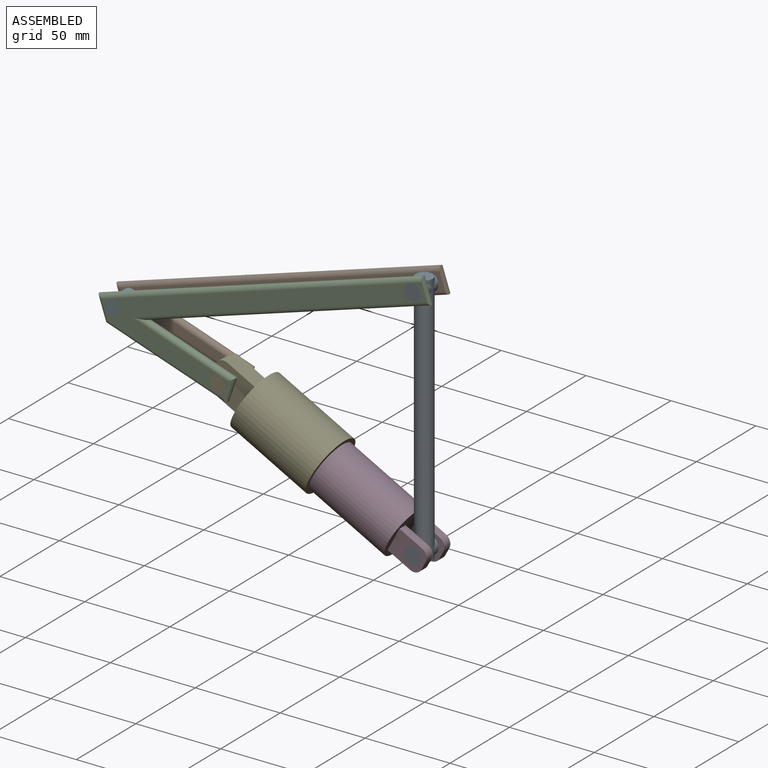
[diagram: assembled view]
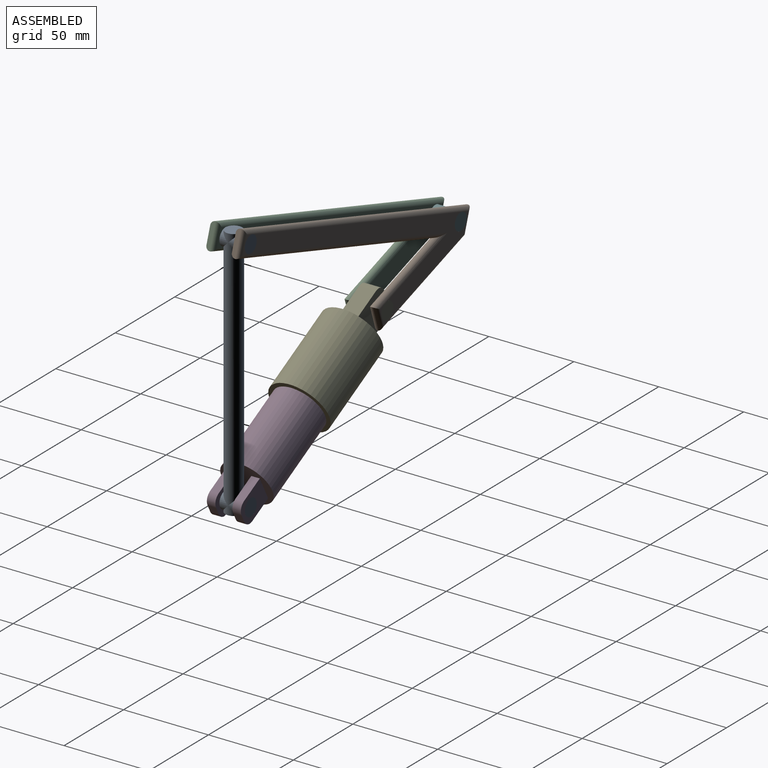
[diagram: assembled view, second angle]
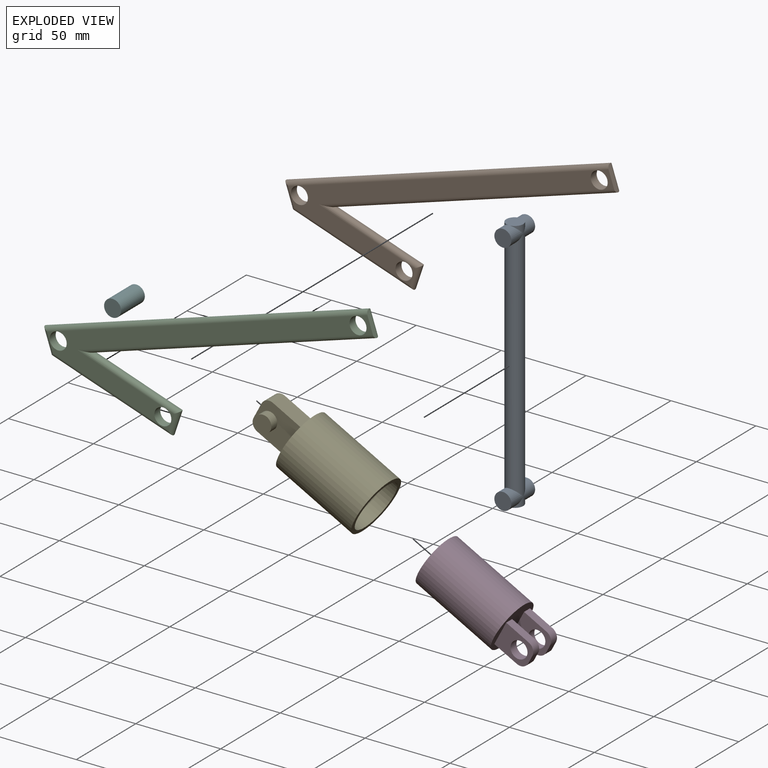
[diagram: exploded view]
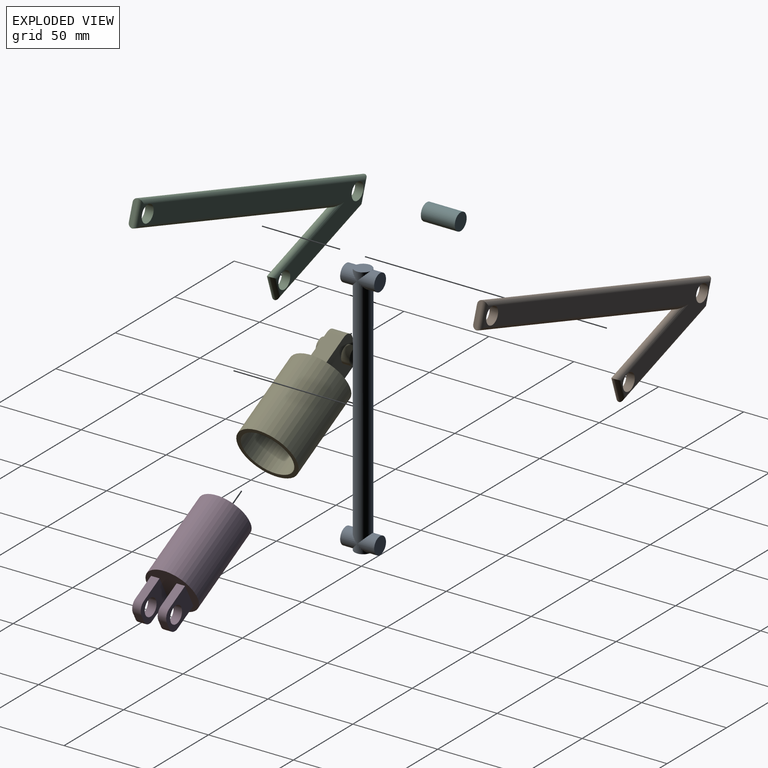
[diagram: exploded view, second angle]
ASSEMBLY  parts=6 mates=7
PART A: 15 faces, bbox 10x20x150 mm
  f0: cylinder r=5mm len=10mm, axis (0,1,0), area 214.2mm2, adj f9,f10,f13,f14
  f1: cylinder r=5mm len=10mm, axis (0,1,0), area 214.2mm2, adj f8,f11,f12,f13
  f2: plane 10x10mm, normal (0,0,1), area 78.5mm2, adj f10,f14
  f3: plane 10x10mm, normal (0,0,-1), area 78.5mm2, adj f11,f12
  f4: plane 10x10mm, normal (0,1,0), area 78.5mm2, adj f5
  f5: cylinder r=5mm len=10mm, axis (0,1,0), area 214.2mm2, adj f4,f10,f13,f14
  f6: plane 10x10mm, normal (0,1,0), area 78.5mm2, adj f7
  f7: cylinder r=5mm len=10mm, axis (0,1,0), area 214.2mm2, adj f6,f11,f12,f13
  f8: plane 10x10mm, normal (0,-1,0), area 78.5mm2, adj f1
  f9: plane 10x10mm, normal (0,-1,0), area 78.5mm2, adj f0
  f10: cylinder r=5mm len=10mm, axis (0,0,1), area 28.5mm2, adj f0,f2,f5
  f11: cylinder r=5mm len=10mm, axis (0,0,1), area 28.5mm2, adj f1,f3,f7
  f12: cylinder r=5mm len=10mm, axis (0,0,-1), area 28.5mm2, adj f1,f3,f7
  f13: cylinder r=5mm len=140mm, axis (0,0,1), area 4198.2mm2, adj f0,f1,f5,f7
  f14: cylinder r=5mm len=10mm, axis (0,0,-1), area 28.5mm2, adj f0,f2,f5
PART B: 22 faces, bbox 170.8x5x129.6 mm
  f0: plane 12.44x11.89mm, normal (0,-1,0), area 35.7mm2, adj f9,f10,f15,f17
  f1: plane 156.52x120.66mm, normal (0,-1,0), area 2350.1mm2, adj f10,f11,f12,f15,f17,f18,f19,f21
  f2: plane 6.96x3.98mm, normal (0,-1,0), area 5.6mm2, adj f12,f17,f19
  f3: plane 5x5mm, normal (0,-1,0), area 5.4mm2, adj f11,f20,f21
  f4: plane 156.52x120.66mm, normal (0,1,0), area 2350.1mm2, adj f10,f11,f12,f15,f17,f18,f19,f21
  f5: plane 6.96x3.98mm, normal (0,1,0), area 5.6mm2, adj f12,f17,f19
  f6: plane 5x5mm, normal (0,1,0), area 5.4mm2, adj f11,f20,f21
  f7: plane 6.77x3.9mm, normal (0,1,0), area 5.1mm2, adj f10,f16,f17
  f8: plane 5x5mm, normal (0,1,0), area 5.4mm2, adj f11,f18,f20
  f9: plane 11.94x9.08mm, normal (0.8,0,0.61), area 34.8mm2, adj f0,f15,f16,f17
  f10: cylinder r=5mm len=10mm, axis (0,1,0), area 157.1mm2, adj f0,f1,f4,f7,f14,f17
  f11: cylinder r=5mm len=10mm, axis (0,1,0), area 157.1mm2, adj f1,f3,f4,f6,f8,f13
  f12: cylinder r=5mm len=10mm, axis (0,1,0), area 157.1mm2, adj f1,f2,f4,f5,f17
  f13: plane 5x5mm, normal (0,-1,0), area 5.4mm2, adj f11,f18,f20
  f14: plane 7.07x4.13mm, normal (0,1,0), area 5.6mm2, adj f10,f15,f16
  f15: cylinder r=2.5mm len=148.8mm, axis (-0.81,0,-0.59), area 1388.8mm2, adj f0,f1,f4,f9,f14,f16,f18
  f16: cylinder r=2.5mm len=13.46mm, axis (-0.61,0,0.8), area 51.8mm2, adj f7,f9,f14,f15,f17
  f17: cylinder r=2.5mm len=163.25mm, axis (0.81,0,0.59), area 1560.1mm2, adj f0,f1,f2,f4,f5,f7,f9,f10
  f18: cylinder r=2.5mm len=62.08mm, axis (1,0,0), area 441.9mm2, adj f1,f4,f8,f13,f15,f20
  f19: cylinder r=2.5mm len=13.47mm, axis (-0.61,0,0.8), area 107mm2, adj f1,f2,f4,f5,f17,f21
  f20: cylinder r=2.5mm len=15.02mm, axis (0,0,-1), area 103.5mm2, adj f3,f6,f8,f13,f18,f21
  f21: cylinder r=2.5mm len=75.01mm, axis (-1,0,0), area 578.4mm2, adj f1,f3,f4,f6,f19,f20
PART C: same geometry as B
PART D: 19 faces, bbox 30x30x70 mm
  f0: plane 30x30mm, normal (0,0,1), area 706.9mm2, adj f18
  f1: plane 30x30mm, normal (0,0,-1), area 556.9mm2, adj f2,f3,f4,f5,f7,f8,f9,f10
  f2: plane 15x5mm, normal (0,1,0), area 75mm2, adj f1,f3,f5,f17
  f3: plane 20x15mm, normal (1,0,0), area 210.7mm2, adj f1,f2,f4,f6,f13,f16,f17
  f4: plane 15x5mm, normal (0,-1,0), area 75mm2, adj f1,f3,f5,f16
  f5: plane 20x15mm, normal (-1,0,0), area 210.7mm2, adj f1,f2,f4,f6,f13,f16,f17
  f6: plane 5x5mm, normal (0,0,-1), area 25mm2, adj f3,f5,f16,f17
  f7: plane 15x5mm, normal (0,1,0), area 75mm2, adj f1,f8,f10,f15
  f8: plane 20x15mm, normal (1,0,0), area 210.7mm2, adj f1,f7,f9,f11,f12,f14,f15
  f9: plane 15x5mm, normal (0,-1,0), area 75mm2, adj f1,f8,f10,f14
  f10: plane 20x15mm, normal (-1,0,0), area 210.7mm2, adj f1,f7,f9,f11,f12,f14,f15
  f11: plane 5x5mm, normal (0,0,-1), area 25mm2, adj f8,f10,f14,f15
  f12: cylinder r=5mm len=10mm, axis (1,0,0), area 157.1mm2, adj f8,f10
  f13: cylinder r=5mm len=10mm, axis (1,0,0), area 157.1mm2, adj f3,f5
  f14: cylinder r=5mm len=5mm, axis (1,0,0), area 39.3mm2, adj f8,f9,f10,f11
  f15: cylinder r=5mm len=5mm, axis (-1,0,0), area 39.3mm2, adj f7,f8,f10,f11
  f16: cylinder r=5mm len=5mm, axis (1,0,0), area 39.3mm2, adj f3,f4,f5,f6
  f17: cylinder r=5mm len=5mm, axis (-1,0,0), area 39.3mm2, adj f2,f3,f5,f6
  f18: cylinder r=15mm len=50mm, axis (0,0,1), area 4712.4mm2, adj f0,f1
PART E: 16 faces, bbox 35x35x75 mm
  f0: plane 35x35mm, normal (0,0,1), area 255.3mm2, adj f11,f12
  f1: plane 35x35mm, normal (0,0,-1), area 762.1mm2, adj f3,f4,f5,f6,f11
  f2: cylinder r=5mm len=10mm, axis (1,0,0), area 157.1mm2, adj f3,f10
  f3: plane 25x20mm, normal (-1,0,0), area 410.7mm2, adj f1,f2,f4,f6,f7,f14,f15
  f4: plane 20x10mm, normal (0,1,0), area 200mm2, adj f1,f3,f5,f14
  f5: plane 25x20mm, normal (1,0,0), area 410.7mm2, adj f1,f4,f6,f7,f9,f14,f15
  f6: plane 20x10mm, normal (0,-1,0), area 200mm2, adj f1,f3,f5,f15
  f7: plane 10x10mm, normal (0,0,-1), area 100mm2, adj f3,f5,f14,f15
  f8: plane 10x10mm, normal (1,0,0), area 78.5mm2, adj f9
  f9: cylinder r=5mm len=10mm, axis (1,0,0), area 157.1mm2, adj f5,f8
  f10: plane 10x10mm, normal (-1,0,0), area 78.5mm2, adj f2
  f11: cylinder r=17.5mm len=50mm, axis (0,0,1), area 5497.8mm2, adj f0,f1
  f12: cylinder r=15mm len=45mm, axis (0,0,1), area 4241.2mm2, adj f0,f13
  f13: plane 30x30mm, normal (0,0,1), area 706.9mm2, adj f12
  f14: cylinder r=5mm len=10mm, axis (-1,0,0), area 78.5mm2, adj f3,f4,f5,f7
  f15: cylinder r=5mm len=10mm, axis (1,0,0), area 78.5mm2, adj f3,f5,f6,f7
PART F: 3 faces, bbox 10x20x10 mm
  f0: cylinder r=5mm len=20mm, axis (0,1,0), area 628.3mm2, adj f1,f2
  f1: plane 10x10mm, normal (0,-1,0), area 78.5mm2, adj f0
  f2: plane 10x10mm, normal (0,1,0), area 78.5mm2, adj f0
PLACE A t=(-44.72,13.62,-12.42)mm fixed
PLACE B rot(axis=(0,1,0),18.6deg) t=(-137.04,21.12,15.45)mm
PLACE C rot(axis=(0,1,0),18.6deg) t=(-137.04,6.12,15.45)mm
PLACE D rot(axis=(0.46,-0.46,-0.76),105.4deg) t=(-55.77,13.62,-76.57)mm
PLACE E rot(axis=(0.65,0.65,0.39),137.2deg) t=(-144.15,13.62,-29.8)mm
PLACE F rot(axis=(0,1,0),18.6deg) t=(-219.79,23.62,6.44)mm
MATE slider E.f12 <-> D.f18  axis (0.88,0,-0.47) through (-139.73,13.62,-32.14)mm
MATE fastened B.f12 <-> F.f0  axis (0,1,0) through (-221.22,23.62,2.17)mm
MATE revolute E.f2 <-> C.f11  axis (0,-1,0) through (-159.62,3.62,-21.61)mm
MATE revolute B.f10 <-> A.f0  axis (0,1,0) through (-44.72,23.62,57.58)mm
MATE revolute C.f10 <-> A.f0  axis (0,-1,0) through (-44.72,3.62,57.58)mm
MATE fastened F.f0 <-> C.f12  axis (0,-1,0) through (-221.22,3.62,2.17)mm
MATE revolute D.f12 <-> A.f1  axis (0,-1,0) through (-44.72,3.62,-82.42)mm
